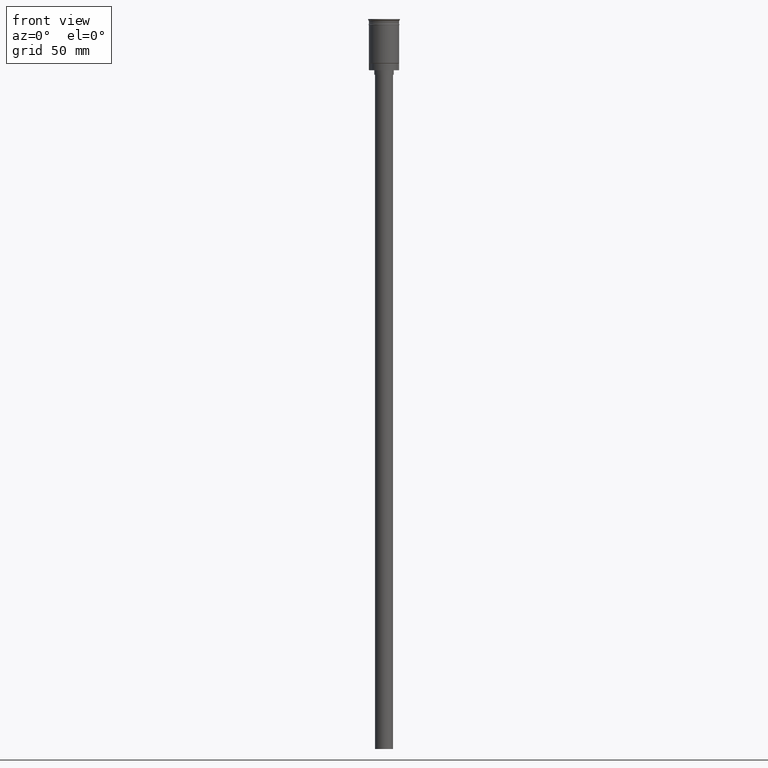
[diagram: clean part render]
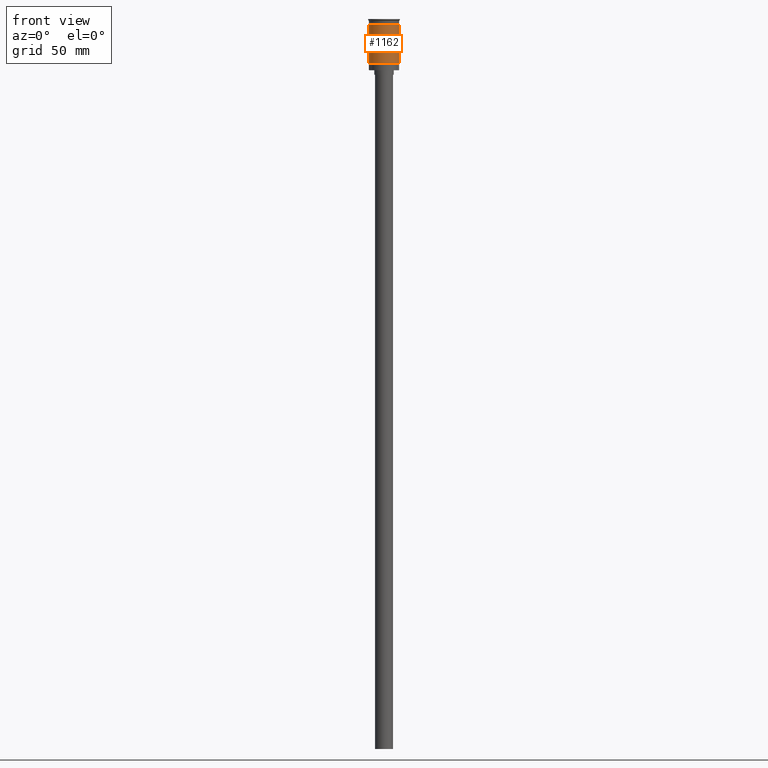
[diagram: same view with one face highlighted and labeled with its STEP entity id]
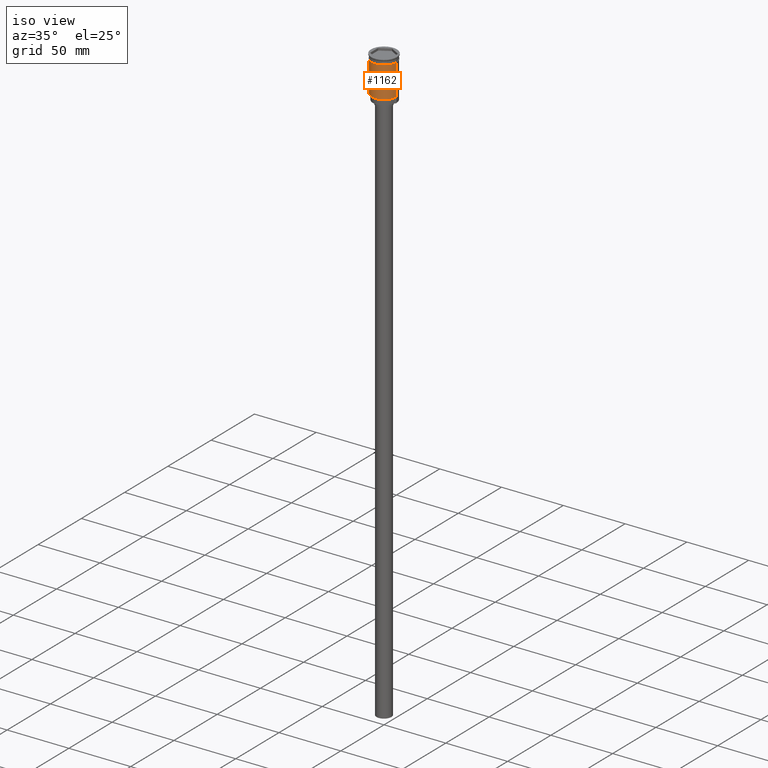
[diagram: same view with one face highlighted and labeled with its STEP entity id]
A machine part, front view. The second image highlights one B-rep face of the part: STEP entity #1162.
A second angle (iso view) of the same face is appended — the face is thin or edge-on in the first view.
In plain terms, the highlighted cylindrical surface (edge-blend (fillet) strip) has radius 10 mm, axis along (-0, -0, 1).
Its self-contained STEP definition (entity closure, byte-faithful):
#26 = AXIS2_PLACEMENT_3D ( 'NONE', #1217, #380, #622 ) ;
#92 = AXIS2_PLACEMENT_3D ( 'NONE', #1595, #1440, #330 ) ;
#106 = ORIENTED_EDGE ( 'NONE', *, *, #392, .T. ) ;
#170 = CIRCLE ( 'NONE', #92, 9.999999999999998224 ) ;
#279 = CARTESIAN_POINT ( 'NONE',  ( -9.999999999999994671, 1.224646799147352665E-15, 0.000000000000000000 ) ) ;
#328 = FACE_OUTER_BOUND ( 'NONE', #960, .T. ) ;
#330 = DIRECTION ( 'NONE',  ( 1.000000000000000000, 0.000000000000000000, 0.000000000000000000 ) ) ;
#342 = CARTESIAN_POINT ( 'NONE',  ( -10.00000000000000000, 1.224646799147353256E-15, -3.999999999999996447 ) ) ;
#343 = EDGE_CURVE ( 'NONE', #1357, #462, #1475, .T. ) ;
#380 = DIRECTION ( 'NONE',  ( -0.000000000000000000, -0.000000000000000000, 1.000000000000000000 ) ) ;
#392 = EDGE_CURVE ( 'NONE', #1343, #1357, #1126, .T. ) ;
#425 = CARTESIAN_POINT ( 'NONE',  ( -9.999999999999991118, 0.000000000000000000, -29.30000000000000071 ) ) ;
#430 = VECTOR ( 'NONE', #1358, 1000.000000000000000 ) ;
#462 = VERTEX_POINT ( 'NONE', #1529 ) ;
#609 = CARTESIAN_POINT ( 'NONE',  ( 9.999999999999994671, 0.000000000000000000, 0.000000000000000000 ) ) ;
#622 = DIRECTION ( 'NONE',  ( -1.000000000000000000, 0.000000000000000000, 0.000000000000000000 ) ) ;
#652 = VECTOR ( 'NONE', #881, 1000.000000000000000 ) ;
#665 = VERTEX_POINT ( 'NONE', #342 ) ;
#700 = EDGE_CURVE ( 'NONE', #665, #462, #170, .T. ) ;
#708 = ORIENTED_EDGE ( 'NONE', *, *, #343, .T. ) ;
#750 = AXIS2_PLACEMENT_3D ( 'NONE', #1477, #1260, #872 ) ;
#754 = LINE ( 'NONE', #279, #652 ) ;
#872 = DIRECTION ( 'NONE',  ( 1.000000000000000000, 0.000000000000000000, 0.000000000000000000 ) ) ;
#875 = EDGE_CURVE ( 'NONE', #1343, #665, #754, .T. ) ;
#881 = DIRECTION ( 'NONE',  ( -0.000000000000000000, -0.000000000000000000, 1.000000000000000000 ) ) ;
#924 = ORIENTED_EDGE ( 'NONE', *, *, #700, .F. ) ;
#960 = EDGE_LOOP ( 'NONE', ( #1085, #106, #708, #924 ) ) ;
#1085 = ORIENTED_EDGE ( 'NONE', *, *, #875, .F. ) ;
#1103 = CYLINDRICAL_SURFACE ( 'NONE', #750, 9.999999999999994671 ) ;
#1126 = CIRCLE ( 'NONE', #26, 9.999999999999994671 ) ;
#1162 = ADVANCED_FACE ( 'NONE', ( #328 ), #1103, .T. ) ;
#1164 = CARTESIAN_POINT ( 'NONE',  ( 9.999999999999994671, 1.224646799147352665E-15, -29.30000000000000071 ) ) ;
#1217 = CARTESIAN_POINT ( 'NONE',  ( 0.000000000000000000, 0.000000000000000000, -29.30000000000000071 ) ) ;
#1260 = DIRECTION ( 'NONE',  ( -0.000000000000000000, -0.000000000000000000, 1.000000000000000000 ) ) ;
#1343 = VERTEX_POINT ( 'NONE', #425 ) ;
#1357 = VERTEX_POINT ( 'NONE', #1164 ) ;
#1358 = DIRECTION ( 'NONE',  ( -0.000000000000000000, -0.000000000000000000, 1.000000000000000000 ) ) ;
#1440 = DIRECTION ( 'NONE',  ( -0.000000000000000000, -0.000000000000000000, 1.000000000000000000 ) ) ;
#1475 = LINE ( 'NONE', #609, #430 ) ;
#1477 = CARTESIAN_POINT ( 'NONE',  ( 0.000000000000000000, 0.000000000000000000, 0.000000000000000000 ) ) ;
#1529 = CARTESIAN_POINT ( 'NONE',  ( 9.999999999999998224, 0.000000000000000000, -3.999999999999996447 ) ) ;
#1595 = CARTESIAN_POINT ( 'NONE',  ( 0.000000000000000000, 0.000000000000000000, -3.999999999999996447 ) ) ;